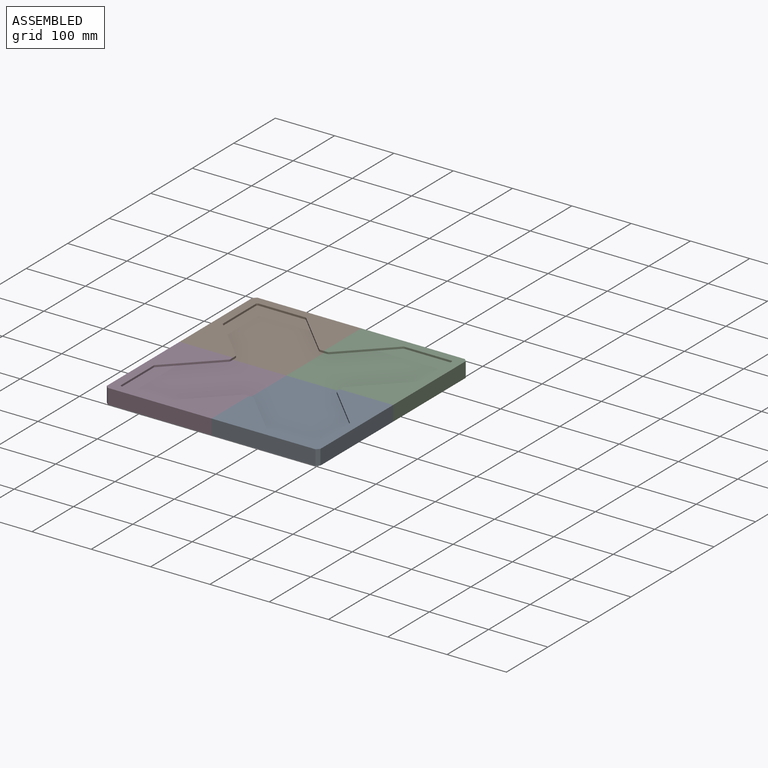
[diagram: assembled view]
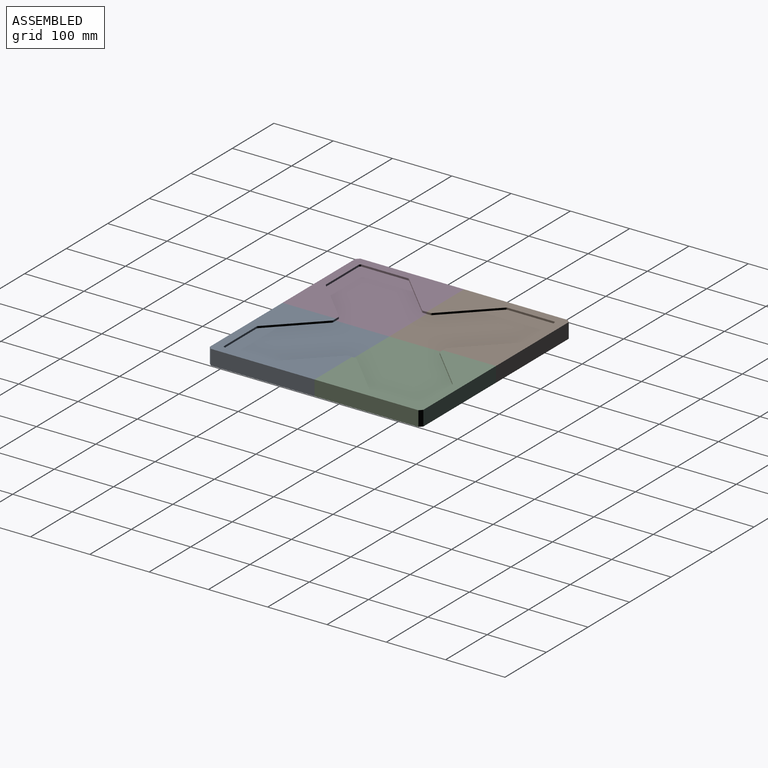
[diagram: assembled view, second angle]
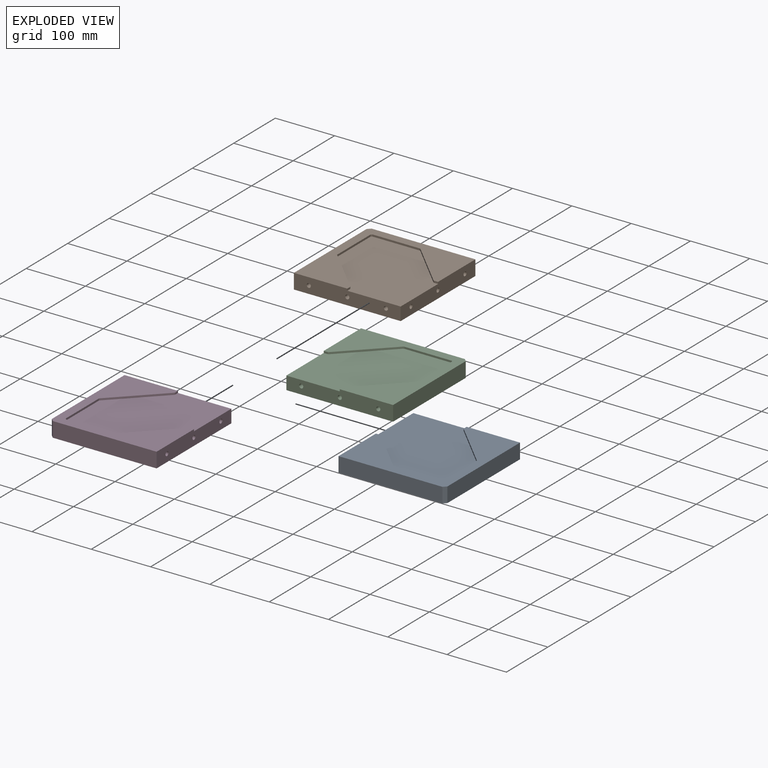
[diagram: exploded view]
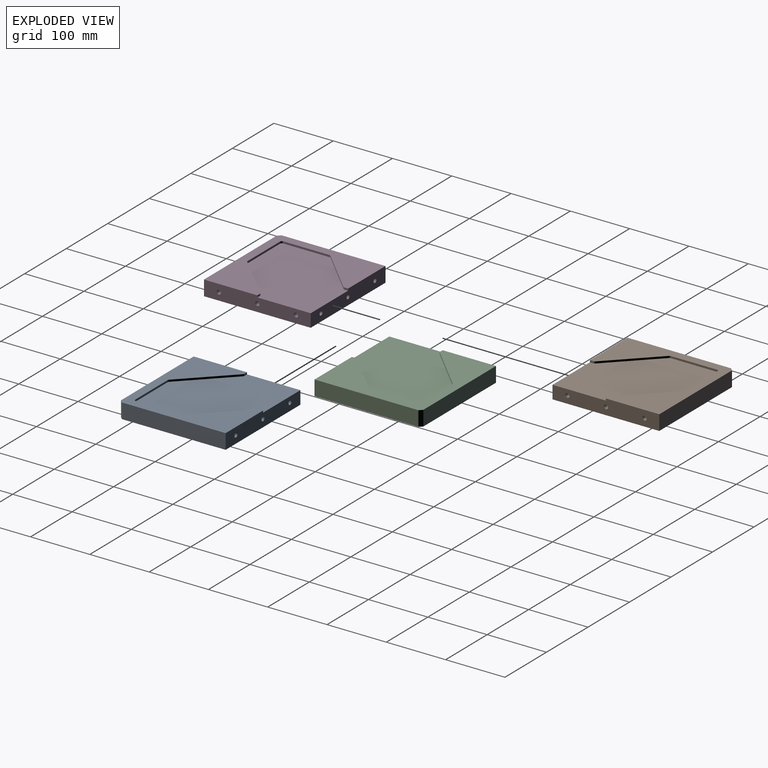
[diagram: exploded view, second angle]
ASSEMBLY  parts=4 mates=9
PART A: 31 faces, bbox 180x180x25.4 mm
  f0: plane 79.72x3.2mm, normal (1,0,0), area 255.1mm2, adj f4,f8,f28,f29
  f1: plane 79.72x3.2mm, normal (0,-1,0), area 255.1mm2, adj f4,f8,f27,f29
  f2: plane 180x25.4mm, normal (0,-1,0), area 4168.5mm2, adj f3,f4,f6,f7,f8,f9,f11,f13
  f3: plane 180x25.4mm, normal (1,0,0), area 4168.5mm2, adj f2,f4,f5,f7,f8,f15,f17,f19
  f4: plane 180x180mm, normal (0,0,1), area 11890.5mm2, adj f0,f1,f2,f3,f5,f6,f21,f22
  f5: plane 175x25.4mm, normal (0,1,0), area 4445mm2, adj f3,f4,f7,f30
  f6: plane 175x25.4mm, normal (-1,0,0), area 4445mm2, adj f2,f4,f7,f30
  f7: plane 180x180mm, normal (0,0,-1), area 32387.5mm2, adj f2,f3,f5,f6,f30
  f8: plane 165.1x165.1mm, normal (0,0,1), area 20497mm2, adj f0,f1,f2,f3,f21,f22,f23,f24
  f9: cylinder r=3.5mm len=15mm, axis (0,-1,0), area 329.9mm2, adj f2,f10
  f10: plane 7x7mm, normal (0,-1,0), area 38.5mm2, adj f9
  f11: cylinder r=3.5mm len=15mm, axis (0,-1,0), area 329.9mm2, adj f2,f12
  f12: plane 7x7mm, normal (0,-1,0), area 38.5mm2, adj f11
  f13: cylinder r=3.5mm len=15mm, axis (0,-1,0), area 329.9mm2, adj f2,f14
  f14: plane 7x7mm, normal (0,-1,0), area 38.5mm2, adj f13
  f15: cylinder r=3.5mm len=15mm, axis (1,0,0), area 329.9mm2, adj f3,f16
  f16: plane 7x7mm, normal (1,0,0), area 38.5mm2, adj f15
  f17: cylinder r=3.5mm len=15mm, axis (1,0,0), area 329.9mm2, adj f3,f18
  f18: plane 7x7mm, normal (1,0,0), area 38.5mm2, adj f17
  f19: cylinder r=3.5mm len=15mm, axis (1,0,0), area 329.9mm2, adj f3,f20
  f20: plane 7x7mm, normal (1,0,0), area 38.5mm2, adj f19
  f21: plane 73.93x73.93mm, normal (-0.71,-0.71,0), area 334.6mm2, adj f4,f8,f25,f27
  f22: plane 6.62x3.2mm, normal (0,-1,0), area 21.2mm2, adj f3,f4,f8,f25
  f23: plane 6.62x3.2mm, normal (1,0,0), area 21.2mm2, adj f2,f4,f8,f26
  f24: plane 73.93x73.93mm, normal (0.71,0.71,0), area 334.6mm2, adj f4,f8,f26,f28
  f25: plane 3.2x1.41mm, normal (-0.38,-0.92,0), area 4.9mm2, adj f4,f8,f21,f22
  f26: plane 3.2x1.41mm, normal (0.92,0.38,0), area 4.9mm2, adj f4,f8,f23,f24
  f27: plane 3.2x1.41mm, normal (-0.38,-0.92,0), area 4.9mm2, adj f1,f4,f8,f21
  f28: plane 3.2x1.41mm, normal (0.92,0.38,0), area 4.9mm2, adj f0,f4,f8,f24
  f29: plane 3.2x2mm, normal (0.71,-0.71,0), area 9.1mm2, adj f0,f1,f4,f8
  f30: plane 25.4x5mm, normal (-0.71,0.71,0), area 179.6mm2, adj f4,f5,f6,f7
PART B: same geometry as A
PART C: same geometry as A
PART D: same geometry as A
PLACE A rot(axis=(0,0,-1),180deg) t=(221.82,-122.86,-154.53)mm
PLACE B rot(axis=(0,0,-1),0deg) t=(41.82,57.14,-154.53)mm
PLACE C rot(axis=(0,0,-1),90deg) t=(221.82,57.14,-154.53)mm
PLACE D rot(axis=(0,0,1),90deg) t=(41.82,-122.86,-154.53)mm
MATE planar B.f2 <-> D.f3  axis (0,-1,0) through (38.72,-32.86,-142.6)mm
MATE cylindrical A.f19 <-> D.f9  axis (-1,0,0) through (131.82,-57.86,-141.83)mm
MATE planar C.f2 <-> B.f3  axis (-1,0,0) through (131.82,60.25,-142.6)mm
MATE cylindrical B.f15 <-> C.f13  axis (1,0,0) through (124.32,122.14,-141.83)mm
MATE cylindrical A.f15 <-> D.f13  axis (-1,0,0) through (139.32,-187.86,-141.83)mm
MATE planar D.f8 <-> B.f8  axis (0,0,1) through (49.39,-115.3,-132.33)mm
MATE cylindrical B.f19 <-> C.f9  axis (1,0,0) through (131.82,-7.86,-141.83)mm
MATE planar D.f2 <-> A.f3  axis (1,0,0) through (131.82,-125.97,-142.6)mm
MATE cylindrical A.f9 <-> C.f19  axis (0,1,0) through (156.82,-32.86,-141.83)mm
